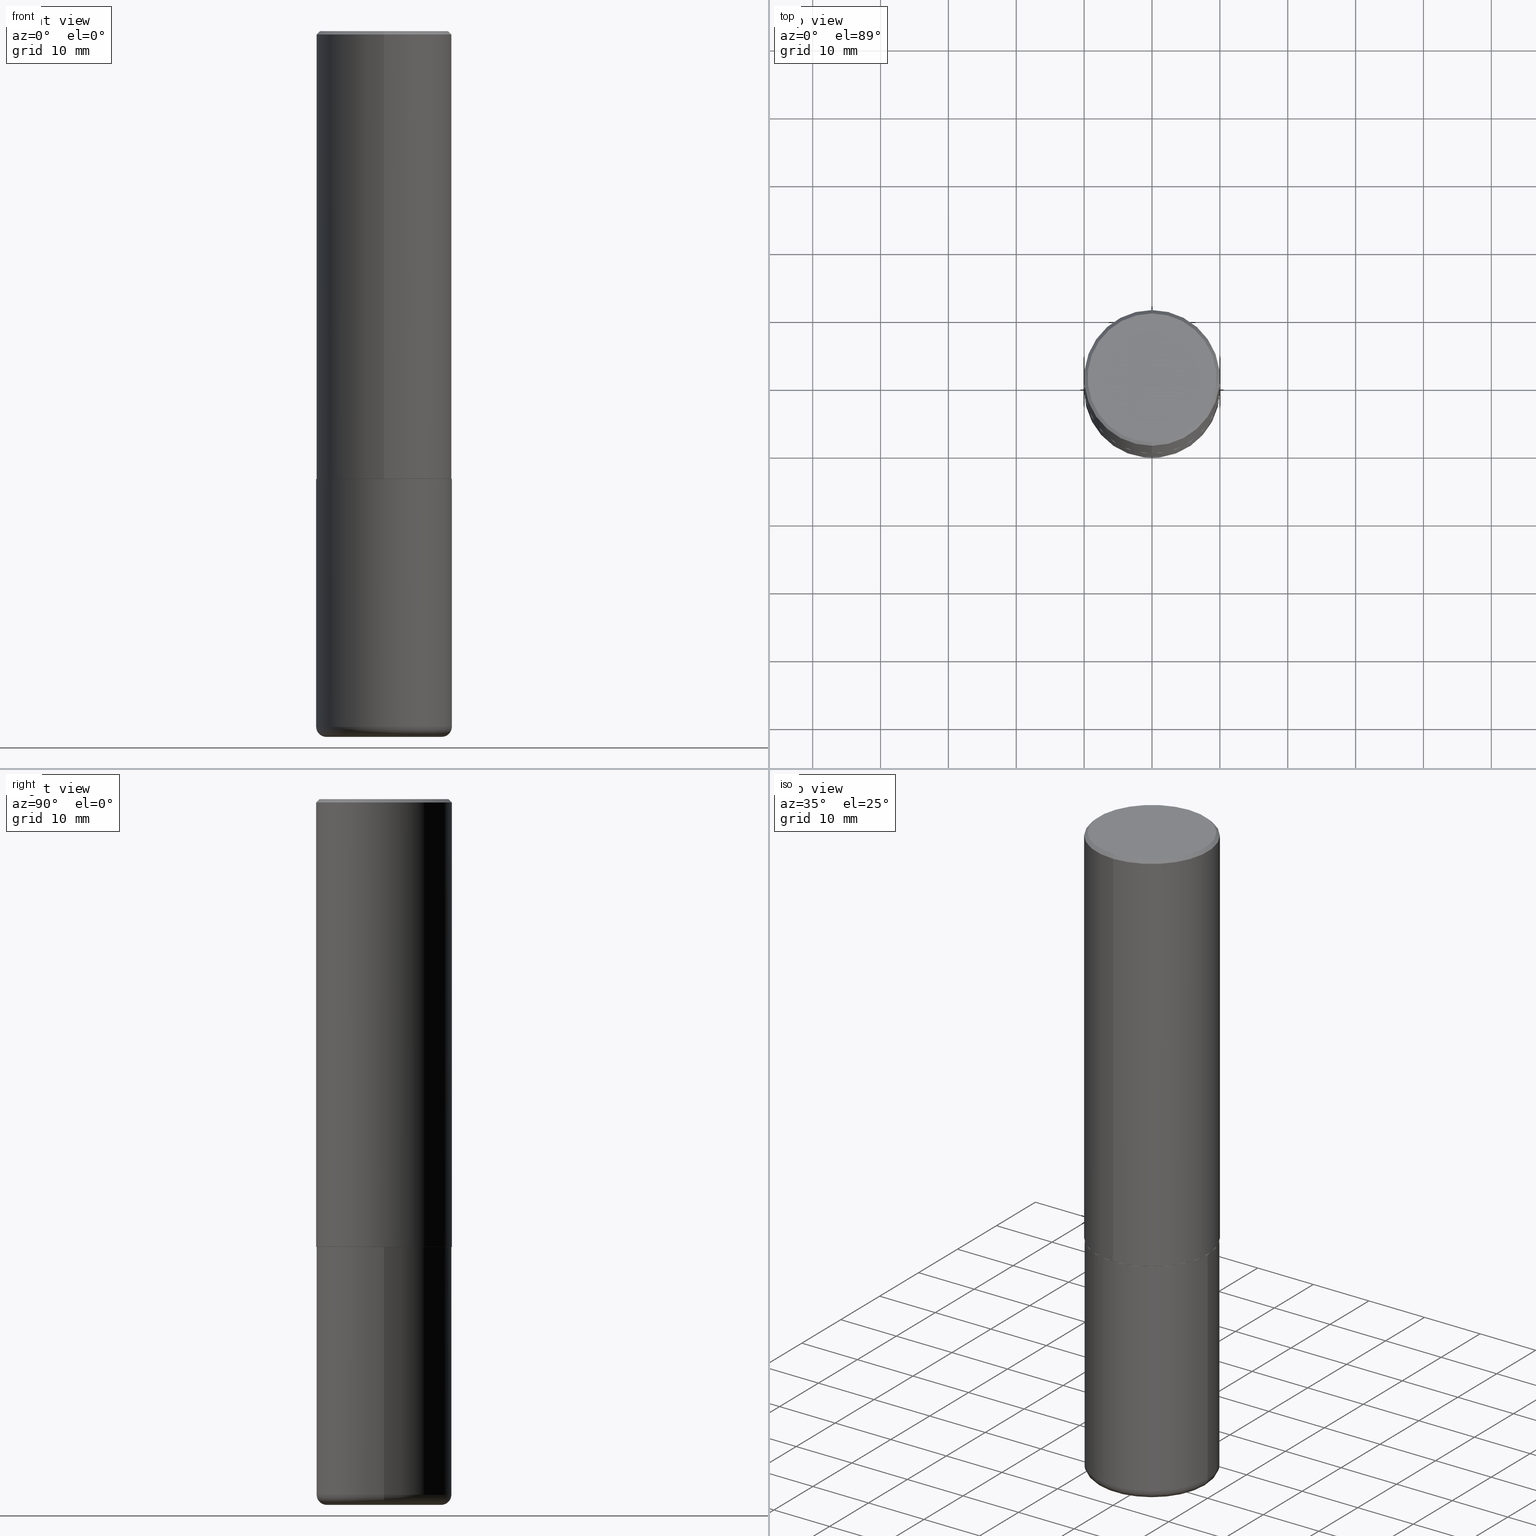
[diagram: canonical four-view strip — front | top / right | iso, engineering-drawing reading convention]
A machine part, canonical four-view strip (front | top / right | iso — engineering-drawing reading convention). The complete STEP part file that produces these views, byte-faithful:
ISO-10303-21;
HEADER;
FILE_DESCRIPTION (( 'STEP AP203' ),
    '1' );
FILE_NAME ('46903.STEP',
    '2024-03-05T07:08:31',
    ( '' ),
    ( '' ),
    'SwSTEP 2.0',
    'SolidWorks 2023',
    '' );
FILE_SCHEMA (( 'CONFIG_CONTROL_DESIGN' ));
ENDSEC;

DATA;
#1 = CIRCLE ( 'NONE', #373, 0.3937000000000002720 ) ;
#2 = DIRECTION ( 'NONE',  ( -2.446544762670070831E-29, 3.489940507917079412E-15, 1.000000000000000000 ) ) ;
#3 = ADVANCED_FACE ( 'NONE', ( #52 ), #273, .F. ) ;
#4 = DIRECTION ( 'NONE',  ( -2.445468806185136597E-29, 3.491481338843145583E-15, 1.000000000000000000 ) ) ;
#5 = DIRECTION ( 'NONE',  ( 1.000000000000000000, -6.982962677686269077E-15, 4.883557194083114022E-29 ) ) ;
#6 = CARTESIAN_POINT ( 'NONE',  ( 6.354306145991459756E-29, -9.072265110850031044E-15, -2.598400000000000265 ) ) ;
#7 = VECTOR ( 'NONE', #21, 39.37007874015748143 ) ;
#8 = ORIENTED_EDGE ( 'NONE', *, *, #269, .F. ) ;
#9 =( LENGTH_UNIT ( ) NAMED_UNIT ( * ) SI_UNIT ( $, .METRE. ) );
#10 = ADVANCED_FACE ( 'NONE', ( #147 ), #22, .T. ) ;
#11 = EDGE_LOOP ( 'NONE', ( #410, #297, #181, #395 ) ) ;
#12 = VERTEX_POINT ( 'NONE', #82 ) ;
#13 = PERSON_AND_ORGANIZATION ( #26, #135 ) ;
#14 = ORIENTED_EDGE ( 'NONE', *, *, #154, .T. ) ;
#15 = DIRECTION ( 'NONE',  ( -2.446544762670070831E-29, 3.489940507917079412E-15, 1.000000000000000000 ) ) ;
#16 = UNCERTAINTY_MEASURE_WITH_UNIT (LENGTH_MEASURE( 1.000000000000000082E-05 ), #113, 'distance_accuracy_value', 'NONE');
#17 = VERTEX_POINT ( 'NONE', #170 ) ;
#18 = DIRECTION ( 'NONE',  ( -6.982962677686265133E-15, -1.000000000000000000, 3.489940507917079412E-15 ) ) ;
#19 = CARTESIAN_POINT ( 'NONE',  ( 6.354306145991459756E-29, -9.072265110850031044E-15, -2.598400000000000265 ) ) ;
#20 = EDGE_CURVE ( 'NONE', #44, #146, #211, .T. ) ;
#21 = DIRECTION ( 'NONE',  ( -4.851104656540950864E-15, -0.7071067811865481278, -0.7071067811865469066 ) ) ;
#22 = TOROIDAL_SURFACE ( 'NONE', #30, 0.3346000000000000085, 0.05909999999999995812 ) ;
#23 = LOCAL_TIME ( 2, 8, 31.00000000000000000, #361 ) ;
#24 = DIRECTION ( 'NONE',  ( -2.446544762670070831E-29, 3.489940507917079412E-15, 1.000000000000000000 ) ) ;
#25 = DATE_AND_TIME ( #88, #37 ) ;
#26 = PERSON ( 'UNSPECIFIED', 'UNSPECIFIED', 'UNSPECIFIED', ('UNSPECIFIED'), ('UNSPECIFIED'), ('UNSPECIFIED') ) ;
#27 = DIRECTION ( 'NONE',  ( 5.024295867789263036E-15, 0.7071067811867189912, 0.7071067811863760433 ) ) ;
#28 = ORIENTED_EDGE ( 'NONE', *, *, #310, .F. ) ;
#29 = ADVANCED_FACE ( 'NONE', ( #246 ), #300, .T. ) ;
#30 = AXIS2_PLACEMENT_3D ( 'NONE', #271, #214, #339 ) ;
#31 = CARTESIAN_POINT ( 'NONE',  ( -2.742209443527332910E-15, -0.3927000000000090973, -2.598399999999998489 ) ) ;
#32 = CARTESIAN_POINT ( 'NONE',  ( 9.868444820479501934E-29, -1.408952379476762952E-14, -4.035400000000000098 ) ) ;
#33 = DIRECTION ( 'NONE',  ( -6.982962677686265133E-15, -1.000000000000000000, 4.173946514383900962E-15 ) ) ;
#34 = EDGE_CURVE ( 'NONE', #17, #12, #266, .T. ) ;
#35 = AXIS2_PLACEMENT_3D ( 'NONE', #265, #91, #68 ) ;
#36 = DIRECTION ( 'NONE',  ( -2.446544762670070831E-29, 3.489940507917079412E-15, 1.000000000000000000 ) ) ;
#37 = LOCAL_TIME ( 2, 8, 31.00000000000000000, #64 ) ;
#38 = DIRECTION ( 'NONE',  ( 1.000000000000000000, -6.982962677686267499E-15, 0.000000000000000000 ) ) ;
#39 = VERTEX_POINT ( 'NONE', #307 ) ;
#40 = LINE ( 'NONE', #166, #293 ) ;
#41 = ORIENTED_EDGE ( 'NONE', *, *, #333, .F. ) ;
#42 = APPROVAL_STATUS ( 'not_yet_approved' ) ;
#43 = TOROIDAL_SURFACE ( 'NONE', #366, 0.3346000000000000085, 0.05909999999999995812 ) ;
#44 = VERTEX_POINT ( 'NONE', #115 ) ;
#45 = ORIENTED_EDGE ( 'NONE', *, *, #347, .T. ) ;
#46 = APPLICATION_PROTOCOL_DEFINITION ( 'international standard', 'config_control_design', 1994, #321 ) ;
#47 = EDGE_LOOP ( 'NONE', ( #280, #240 ) ) ;
#48 = ORIENTED_EDGE ( 'NONE', *, *, #148, .T. ) ;
#49 = CARTESIAN_POINT ( 'NONE',  ( 2.797406750687514786E-15, 0.3937000000000001054, -1.373989577966954523E-15 ) ) ;
#50 = CARTESIAN_POINT ( 'NONE',  ( -0.3346000000000000085, -1.171204780091433423E-14, -4.035400000000000098 ) ) ;
#51 = CARTESIAN_POINT ( 'NONE',  ( 0.000000000000000000, 0.000000000000000000, 0.000000000000000000 ) ) ;
#52 = FACE_OUTER_BOUND ( 'NONE', #47, .T. ) ;
#53 = AXIS2_PLACEMENT_3D ( 'NONE', #320, #2, #126 ) ;
#54 = DATE_AND_TIME ( #277, #192 ) ;
#55 = DIRECTION ( 'NONE',  ( 4.937700262164533843E-15, 0.7071067811865431318, -0.7071067811865516806 ) ) ;
#56 = DIRECTION ( 'NONE',  ( -6.982962677686265922E-15, -1.000000000000000000, 3.491137977679280212E-15 ) ) ;
#57 = DESIGN_CONTEXT ( 'detailed design', #321, 'design' ) ;
#58 = PLANE ( 'NONE',  #288 ) ;
#59 = AXIS2_PLACEMENT_3D ( 'NONE', #283, #153, #252 ) ;
#60 = DATE_TIME_ROLE ( 'classification_date' ) ;
#61 = DIRECTION ( 'NONE',  ( -2.446544762670070831E-29, 3.489940507917079412E-15, 1.000000000000000000 ) ) ;
#62 = APPROVAL_DATE_TIME ( #287, #69 ) ;
#63 = EDGE_CURVE ( 'NONE', #146, #39, #168, .T. ) ;
#64 = COORDINATED_UNIVERSAL_TIME_OFFSET ( 5, 0, .BEHIND. ) ;
#65 = CARTESIAN_POINT ( 'NONE',  ( 2.790301323329976493E-15, 0.3926999999999909452, -2.598400000000002041 ) ) ;
#66 = AXIS2_PLACEMENT_3D ( 'NONE', #19, #405, #83 ) ;
#67 = CIRCLE ( 'NONE', #118, 0.3926999999999999935 ) ;
#68 = DIRECTION ( 'NONE',  ( -6.982962677686265133E-15, -1.000000000000000000, 3.489940507917079412E-15 ) ) ;
#69 = APPROVAL ( #377, 'UNSPECIFIED' ) ;
#70 = CARTESIAN_POINT ( 'NONE',  ( 6.357101911321911944E-29, -9.068261415771741933E-15, -2.598400000000000265 ) ) ;
#71 = DIRECTION ( 'NONE',  ( -4.937700262165728178E-15, -0.7071067811867141062, 0.7071067811863809283 ) ) ;
#72 = CONICAL_SURFACE ( 'NONE', #122, 0.3926999999999999935, 0.7853981633976873100 ) ;
#73 = DIRECTION ( 'NONE',  ( -2.445468806185136597E-29, 3.491481338843145583E-15, 1.000000000000000000 ) ) ;
#74 = ORIENTED_EDGE ( 'NONE', *, *, #256, .T. ) ;
#75 = DIRECTION ( 'NONE',  ( 6.982962677686265922E-15, 1.000000000000000000, -3.489940507917079412E-15 ) ) ;
#76 = ORIENTED_EDGE ( 'NONE', *, *, #347, .F. ) ;
#77 = APPROVAL ( #42, 'UNSPECIFIED' ) ;
#78 = FACE_OUTER_BOUND ( 'NONE', #254, .T. ) ;
#79 = AXIS2_PLACEMENT_3D ( 'NONE', #85, #257, #56 ) ;
#80 = VERTEX_POINT ( 'NONE', #188 ) ;
#81 = ADVANCED_FACE ( 'NONE', ( #125 ), #175, .T. ) ;
#82 = CARTESIAN_POINT ( 'NONE',  ( -0.3936999999999999389, -1.129211704408011394E-14, -4.035400000000000098 ) ) ;
#83 = DIRECTION ( 'NONE',  ( -1.000000000000000000, 6.982962677686265922E-15, -4.876176775795935793E-29 ) ) ;
#84 = APPLICATION_PROTOCOL_DEFINITION ( 'international standard', 'config_control_design', 1994, #363 ) ;
#85 = CARTESIAN_POINT ( 'NONE',  ( 4.893089525340162610E-31, -6.979881015834188652E-17, -0.02000000000000008715 ) ) ;
#86 = AXIS2_PLACEMENT_3D ( 'NONE', #356, #129, #325 ) ;
#87 = CARTESIAN_POINT ( 'NONE',  ( 0.3937000000000000499, -2.749192406205083217E-15, 1.919750796630860172E-29 ) ) ;
#88 = CALENDAR_DATE ( 2024, 5, 3 ) ;
#89 = ADVANCED_FACE ( 'NONE', ( #226 ), #58, .F. ) ;
#90 = CARTESIAN_POINT ( 'NONE',  ( 0.000000000000000000, 0.000000000000000000, 0.000000000000000000 ) ) ;
#91 = DIRECTION ( 'NONE',  ( -2.446544762670070831E-29, 3.489940507917079412E-15, 1.000000000000000000 ) ) ;
#92 = EDGE_CURVE ( 'NONE', #80, #365, #155, .T. ) ;
#93 = AXIS2_PLACEMENT_3D ( 'NONE', #201, #295, #233 ) ;
#94 = DIRECTION ( 'NONE',  ( 1.000000000000000000, -6.982962677686267499E-15, 0.000000000000000000 ) ) ;
#95 = CARTESIAN_POINT ( 'NONE',  ( 9.868444820479501934E-29, -1.408952379476762952E-14, -4.035400000000000098 ) ) ;
#96 = CYLINDRICAL_SURFACE ( 'NONE', #35, 0.3937000000000001054 ) ;
#97 = ORIENTED_EDGE ( 'NONE', *, *, #34, .T. ) ;
#98 = MANIFOLD_SOLID_BREP ( 'Body-Move/Copy2[2]', #248 ) ;
#99 = AXIS2_PLACEMENT_3D ( 'NONE', #327, #355, #262 ) ;
#100 = FACE_OUTER_BOUND ( 'NONE', #408, .T. ) ;
#101 = EDGE_CURVE ( 'NONE', #302, #39, #221, .T. ) ;
#102 = VERTEX_POINT ( 'NONE', #31 ) ;
#103 = FACE_OUTER_BOUND ( 'NONE', #264, .T. ) ;
#104 = ORIENTED_EDGE ( 'NONE', *, *, #315, .T. ) ;
#105 = MECHANICAL_CONTEXT ( 'NONE', #363, 'mechanical' ) ;
#106 = ORIENTED_EDGE ( 'NONE', *, *, #353, .F. ) ;
#107 = MANIFOLD_SOLID_BREP ( 'Body-Move/Copy2[1]', #133 ) ;
#108 = ORIENTED_EDGE ( 'NONE', *, *, #315, .F. ) ;
#109 = DIRECTION ( 'NONE',  ( -2.446544762670070831E-29, 3.489940507917079412E-15, 1.000000000000000000 ) ) ;
#110 = AXIS2_PLACEMENT_3D ( 'NONE', #6, #132, #38 ) ;
#111 = ORIENTED_EDGE ( 'NONE', *, *, #101, .F. ) ;
#112 =( GEOMETRIC_REPRESENTATION_CONTEXT ( 3 ) GLOBAL_UNCERTAINTY_ASSIGNED_CONTEXT ( ( #16 ) ) GLOBAL_UNIT_ASSIGNED_CONTEXT ( ( #113, #245, #242 ) ) REPRESENTATION_CONTEXT ( 'NONE', 'WORKASPACE' ) );
#113 =( CONVERSION_BASED_UNIT ( 'INCH', #279 ) LENGTH_UNIT ( ) NAMED_UNIT ( #189 ) );
#114 = VERTEX_POINT ( 'NONE', #384 ) ;
#115 = CARTESIAN_POINT ( 'NONE',  ( 2.679362779428219524E-15, 0.3736999999999999211, -1.227933351503875560E-15 ) ) ;
#116 = PERSON_AND_ORGANIZATION ( #26, #135 ) ;
#117 = CARTESIAN_POINT ( 'NONE',  ( 2.749192406205082822E-15, 0.3936999999999998834, -0.02000000000000146105 ) ) ;
#118 = AXIS2_PLACEMENT_3D ( 'NONE', #70, #165, #194 ) ;
#119 = FACE_OUTER_BOUND ( 'NONE', #173, .T. ) ;
#120 = CC_DESIGN_PERSON_AND_ORGANIZATION_ASSIGNMENT ( #344, #409, ( #253 ) ) ;
#121 = LINE ( 'NONE', #312, #7 ) ;
#122 = AXIS2_PLACEMENT_3D ( 'NONE', #364, #15, #368 ) ;
#123 = DATE_AND_TIME ( #404, #23 ) ;
#124 = CYLINDRICAL_SURFACE ( 'NONE', #324, 0.3937000000000000499 ) ;
#125 = FACE_OUTER_BOUND ( 'NONE', #11, .T. ) ;
#126 = DIRECTION ( 'NONE',  ( -6.982962677686265922E-15, -1.000000000000000000, 4.163344669033672479E-15 ) ) ;
#127 = CC_DESIGN_DATE_AND_TIME_ASSIGNMENT ( #25, #60, ( #388 ) ) ;
#128 = PLANE ( 'NONE',  #260 ) ;
#129 = DIRECTION ( 'NONE',  ( -2.446544762670070831E-29, 3.489940507917079412E-15, 1.000000000000000000 ) ) ;
#130 = EDGE_LOOP ( 'NONE', ( #399, #140, #336, #326 ) ) ;
#131 = EDGE_CURVE ( 'NONE', #39, #146, #206, .T. ) ;
#132 = DIRECTION ( 'NONE',  ( -2.445468806185136597E-29, 3.491481338843145583E-15, 1.000000000000000000 ) ) ;
#133 = CLOSED_SHELL ( 'NONE', ( #29, #179, #3, #139, #10, #169 ) ) ;
#134 = CIRCLE ( 'NONE', #99, 0.05909999999999992343 ) ;
#135 = ORGANIZATION ( 'UNSPECIFIED', 'UNSPECIFIED', '' ) ;
#136 = DIRECTION ( 'NONE',  ( -2.445468806185136597E-29, 3.491481338843145583E-15, 1.000000000000000000 ) ) ;
#137 = EDGE_LOOP ( 'NONE', ( #369, #97, #28, #309 ) ) ;
#138 = ORIENTED_EDGE ( 'NONE', *, *, #34, .F. ) ;
#139 = ADVANCED_FACE ( 'NONE', ( #156 ), #124, .T. ) ;
#140 = ORIENTED_EDGE ( 'NONE', *, *, #286, .T. ) ;
#141 = EDGE_LOOP ( 'NONE', ( #45, #401, #360, #203 ) ) ;
#142 = ORIENTED_EDGE ( 'NONE', *, *, #101, .T. ) ;
#143 = COORDINATED_UNIVERSAL_TIME_OFFSET ( 5, 0, .BEHIND. ) ;
#144 = CIRCLE ( 'NONE', #86, 0.3736999999999999211 ) ;
#145 = CARTESIAN_POINT ( 'NONE',  ( 0.000000000000000000, 0.000000000000000000, 0.000000000000000000 ) ) ;
#146 = VERTEX_POINT ( 'NONE', #313 ) ;
#147 = FACE_OUTER_BOUND ( 'NONE', #392, .T. ) ;
#148 = EDGE_CURVE ( 'NONE', #212, #178, #258, .T. ) ;
#149 = ORIENTED_EDGE ( 'NONE', *, *, #63, .T. ) ;
#150 = PLANE ( 'NONE',  #59 ) ;
#151 = AXIS2_PLACEMENT_3D ( 'NONE', #259, #294, #230 ) ;
#152 = SHAPE_DEFINITION_REPRESENTATION ( #397, #402 ) ;
#153 = DIRECTION ( 'NONE',  ( 2.438088387897960049E-29, -3.491481338843145188E-15, -1.000000000000000000 ) ) ;
#154 = EDGE_CURVE ( 'NONE', #365, #302, #1, .T. ) ;
#155 = LINE ( 'NONE', #65, #249 ) ;
#156 = FACE_OUTER_BOUND ( 'NONE', #204, .T. ) ;
#157 = AXIS2_PLACEMENT_3D ( 'NONE', #187, #159, #184 ) ;
#158 = APPROVAL_PERSON_ORGANIZATION ( #116, #69, #190 ) ;
#159 = DIRECTION ( 'NONE',  ( -2.446544762670070831E-29, 3.489940507917079412E-15, 1.000000000000000000 ) ) ;
#160 = DIRECTION ( 'NONE',  ( -2.445468806185136597E-29, 3.491481338843145583E-15, 1.000000000000000000 ) ) ;
#161 = CARTESIAN_POINT ( 'NONE',  ( 6.357101911321911944E-29, -9.068261415771741933E-15, -2.598400000000000265 ) ) ;
#162 = CIRCLE ( 'NONE', #318, 0.3926999999999999935 ) ;
#163 = CARTESIAN_POINT ( 'NONE',  ( -2.749192406205021291E-15, -0.3937000000000093758, -2.597399999999999043 ) ) ;
#164 = EDGE_CURVE ( 'NONE', #328, #39, #121, .T. ) ;
#165 = DIRECTION ( 'NONE',  ( -2.446544762670070831E-29, 3.489940507917079412E-15, 1.000000000000000000 ) ) ;
#166 = CARTESIAN_POINT ( 'NONE',  ( -0.3937000000000000499, 2.797406750687514786E-15, -1.936584745033356735E-29 ) ) ;
#167 = ORIENTED_EDGE ( 'NONE', *, *, #310, .T. ) ;
#168 = CIRCLE ( 'NONE', #79, 0.3936999999999999389 ) ;
#169 = ADVANCED_FACE ( 'NONE', ( #119 ), #150, .T. ) ;
#170 = CARTESIAN_POINT ( 'NONE',  ( -0.3346000000000000085, -1.160525569606004165E-14, -4.094500000000000028 ) ) ;
#171 = ORIENTED_EDGE ( 'NONE', *, *, #148, .F. ) ;
#172 = ORIENTED_EDGE ( 'NONE', *, *, #238, .F. ) ;
#173 = EDGE_LOOP ( 'NONE', ( #172, #108 ) ) ;
#174 = ORIENTED_EDGE ( 'NONE', *, *, #183, .F. ) ;
#175 = CONICAL_SURFACE ( 'NONE', #411, 0.3936999999999999389, 0.7853981633974457255 ) ;
#176 = APPROVAL_ROLE ( '' ) ;
#177 = AXIS2_PLACEMENT_3D ( 'NONE', #145, #281, #338 ) ;
#178 = VERTEX_POINT ( 'NONE', #382 ) ;
#179 = ADVANCED_FACE ( 'NONE', ( #285 ), #43, .T. ) ;
#180 = CARTESIAN_POINT ( 'NONE',  ( 4.893089525340162610E-31, -6.979881015834188652E-17, -0.02000000000000008715 ) ) ;
#181 = ORIENTED_EDGE ( 'NONE', *, *, #131, .T. ) ;
#182 = CARTESIAN_POINT ( 'NONE',  ( 4.893089525340162610E-31, -6.979881015834188652E-17, -0.02000000000000008715 ) ) ;
#183 = EDGE_CURVE ( 'NONE', #44, #328, #413, .T. ) ;
#184 = DIRECTION ( 'NONE',  ( -6.982962677686265922E-15, -1.000000000000000000, 3.491137977679280212E-15 ) ) ;
#185 = CIRCLE ( 'NONE', #93, 0.3346000000000000085 ) ;
#186 = PERSON_AND_ORGANIZATION_ROLE ( 'design_supplier' ) ;
#187 = CARTESIAN_POINT ( 'NONE',  ( 4.893089525340162610E-31, -6.979881015834188652E-17, -0.02000000000000008715 ) ) ;
#188 = CARTESIAN_POINT ( 'NONE',  ( 2.793854037008778575E-15, 0.3926999999999909452, -2.598400000000002041 ) ) ;
#189 = DIMENSIONAL_EXPONENTS ( 1.000000000000000000, 0.000000000000000000, 0.000000000000000000, 0.000000000000000000, 0.000000000000000000, 0.000000000000000000, 0.000000000000000000 ) ;
#190 = APPROVAL_ROLE ( '' ) ;
#191 = AXIS2_PLACEMENT_3D ( 'NONE', #199, #160, #354 ) ;
#192 = LOCAL_TIME ( 2, 8, 31.00000000000000000, #143 ) ;
#193 = DIRECTION ( 'NONE',  ( -2.446544762670070831E-29, 3.489940507917079412E-15, 1.000000000000000000 ) ) ;
#194 = DIRECTION ( 'NONE',  ( -6.982962677686265133E-15, -1.000000000000000000, 4.173946514383900962E-15 ) ) ;
#195 = CARTESIAN_POINT ( 'NONE',  ( 6.357101911321911944E-29, -9.068261415771741933E-15, -2.598400000000000265 ) ) ;
#196 = CC_DESIGN_DATE_AND_TIME_ASSIGNMENT ( #54, #237, ( #205 ) ) ;
#197 = CIRCLE ( 'NONE', #151, 0.3937000000000000499 ) ;
#198 = AXIS2_PLACEMENT_3D ( 'NONE', #210, #329, #18 ) ;
#199 = CARTESIAN_POINT ( 'NONE',  ( 1.001297202692504215E-28, -1.429587034189326149E-14, -4.094500000000000028 ) ) ;
#200 = EDGE_LOOP ( 'NONE', ( #167, #208, #106, #171 ) ) ;
#201 = CARTESIAN_POINT ( 'NONE',  ( 1.001297202692504215E-28, -1.429587034189326149E-14, -4.094500000000000028 ) ) ;
#202 = CYLINDRICAL_SURFACE ( 'NONE', #198, 0.3937000000000001054 ) ;
#203 = ORIENTED_EDGE ( 'NONE', *, *, #284, .F. ) ;
#204 = EDGE_LOOP ( 'NONE', ( #316, #342, #48, #8 ) ) ;
#205 = PRODUCT_DEFINITION ( 'UNKNOWN', '', #253, #57 ) ;
#206 = CIRCLE ( 'NONE', #157, 0.3936999999999999389 ) ;
#207 = APPROVAL_STATUS ( 'not_yet_approved' ) ;
#208 = ORIENTED_EDGE ( 'NONE', *, *, #261, .T. ) ;
#209 = ORIENTED_EDGE ( 'NONE', *, *, #183, .T. ) ;
#210 = CARTESIAN_POINT ( 'NONE',  ( 0.000000000000000000, 0.000000000000000000, 0.000000000000000000 ) ) ;
#211 = LINE ( 'NONE', #117, #241 ) ;
#212 = VERTEX_POINT ( 'NONE', #359 ) ;
#213 = COORDINATED_UNIVERSAL_TIME_OFFSET ( 5, 0, .BEHIND. ) ;
#214 = DIRECTION ( 'NONE',  ( -2.445468806185136597E-29, 3.491481338843145583E-15, 1.000000000000000000 ) ) ;
#215 = ADVANCED_FACE ( 'NONE', ( #387 ), #394, .T. ) ;
#216 = CIRCLE ( 'NONE', #53, 0.3937000000000002720 ) ;
#217 = APPROVAL_ROLE ( '' ) ;
#218 = ORIENTED_EDGE ( 'NONE', *, *, #164, .F. ) ;
#219 = DIRECTION ( 'NONE',  ( -2.445468806185136877E-29, 3.491481338843145188E-15, 1.000000000000000000 ) ) ;
#220 = ADVANCED_FACE ( 'NONE', ( #100 ), #128, .F. ) ;
#221 = LINE ( 'NONE', #251, #229 ) ;
#222 = VECTOR ( 'NONE', #109, 39.37007874015748143 ) ;
#223 = AXIS2_PLACEMENT_3D ( 'NONE', #51, #407, #308 ) ;
#224 = CALENDAR_DATE ( 2024, 5, 3 ) ;
#225 = VERTEX_POINT ( 'NONE', #232 ) ;
#226 = FACE_OUTER_BOUND ( 'NONE', #335, .T. ) ;
#227 = CC_DESIGN_PERSON_AND_ORGANIZATION_ASSIGNMENT ( #341, #334, ( #205 ) ) ;
#228 = CARTESIAN_POINT ( 'NONE',  ( -1.865671824751044752E-45, 2.661338461909964550E-31, 7.625741630473653378E-17 ) ) ;
#229 = VECTOR ( 'NONE', #319, 39.37007874015748143 ) ;
#230 = DIRECTION ( 'NONE',  ( 1.000000000000000000, -6.982962677686267499E-15, 0.000000000000000000 ) ) ;
#231 = APPROVAL ( #207, 'UNSPECIFIED' ) ;
#232 = CARTESIAN_POINT ( 'NONE',  ( 0.3346000000000000085, -1.663236965384708707E-14, -4.094500000000000028 ) ) ;
#233 = DIRECTION ( 'NONE',  ( 1.000000000000000000, -6.982962677686269866E-15, 0.000000000000000000 ) ) ;
#234 = LOCAL_TIME ( 2, 8, 31.00000000000000000, #379 ) ;
#235 = APPROVAL_PERSON_ORGANIZATION ( #301, #77, #176 ) ;
#236 = CARTESIAN_POINT ( 'NONE',  ( 2.609533152651356620E-15, 0.3736999999999999211, -1.266062059656243932E-15 ) ) ;
#237 = DATE_TIME_ROLE ( 'creation_date' ) ;
#238 = EDGE_CURVE ( 'NONE', #225, #17, #185, .T. ) ;
#239 = LINE ( 'NONE', #49, #222 ) ;
#240 = ORIENTED_EDGE ( 'NONE', *, *, #269, .T. ) ;
#241 = VECTOR ( 'NONE', #55, 39.37007874015748854 ) ;
#242 =( NAMED_UNIT ( * ) SI_UNIT ( $, .STERADIAN. ) SOLID_ANGLE_UNIT ( ) );
#243 = ORIENTED_EDGE ( 'NONE', *, *, #274, .T. ) ;
#244 = EDGE_CURVE ( 'NONE', #225, #212, #134, .T. ) ;
#245 =( NAMED_UNIT ( * ) PLANE_ANGLE_UNIT ( ) SI_UNIT ( $, .RADIAN. ) );
#246 = FACE_OUTER_BOUND ( 'NONE', #200, .T. ) ;
#247 = ORIENTED_EDGE ( 'NONE', *, *, #372, .T. ) ;
#248 = CLOSED_SHELL ( 'NONE', ( #215, #406, #81, #390, #362, #378, #89, #220 ) ) ;
#249 = VECTOR ( 'NONE', #27, 39.37007874015748143 ) ;
#250 = CC_DESIGN_SECURITY_CLASSIFICATION ( #388, ( #253 ) ) ;
#251 = CARTESIAN_POINT ( 'NONE',  ( -2.749192406205083217E-15, -0.3937000000000001054, 1.373989577966954523E-15 ) ) ;
#252 = DIRECTION ( 'NONE',  ( -1.000000000000000000, 6.982962677686265922E-15, -4.876176775795935793E-29 ) ) ;
#253 = PRODUCT_DEFINITION_FORMATION_WITH_SPECIFIED_SOURCE ( 'ANY', '', #374, .NOT_KNOWN. ) ;
#254 = EDGE_LOOP ( 'NONE', ( #218, #174, #376, #149 ) ) ;
#255 = PERSON_AND_ORGANIZATION ( #26, #135 ) ;
#256 = EDGE_CURVE ( 'NONE', #302, #365, #216, .T. ) ;
#257 = DIRECTION ( 'NONE',  ( -2.446544762670070831E-29, 3.489940507917079412E-15, 1.000000000000000000 ) ) ;
#258 = LINE ( 'NONE', #87, #381 ) ;
#259 = CARTESIAN_POINT ( 'NONE',  ( 9.868444820479501934E-29, -1.408952379476762952E-14, -4.035400000000000098 ) ) ;
#260 = AXIS2_PLACEMENT_3D ( 'NONE', #236, #322, #75 ) ;
#261 = EDGE_CURVE ( 'NONE', #12, #114, #40, .T. ) ;
#262 = DIRECTION ( 'NONE',  ( 1.000000000000000000, -6.982962677686271444E-15, 0.000000000000000000 ) ) ;
#263 = DIRECTION ( 'NONE',  ( 1.000000000000000000, -6.982962677686267499E-15, 0.000000000000000000 ) ) ;
#264 = EDGE_LOOP ( 'NONE', ( #74, #247, #305, #111 ) ) ;
#265 = CARTESIAN_POINT ( 'NONE',  ( 0.000000000000000000, 0.000000000000000000, 0.000000000000000000 ) ) ;
#266 = CIRCLE ( 'NONE', #357, 0.05909999999999992343 ) ;
#267 = AXIS2_PLACEMENT_3D ( 'NONE', #180, #398, #299 ) ;
#268 = DATE_AND_TIME ( #396, #414 ) ;
#269 = EDGE_CURVE ( 'NONE', #114, #178, #340, .T. ) ;
#270 = PERSON_AND_ORGANIZATION ( #26, #135 ) ;
#271 = CARTESIAN_POINT ( 'NONE',  ( 9.868444820479501934E-29, -1.408952379476762952E-14, -4.035400000000000098 ) ) ;
#272 = ORIENTED_EDGE ( 'NONE', *, *, #372, .F. ) ;
#273 = PLANE ( 'NONE',  #66 ) ;
#274 = EDGE_CURVE ( 'NONE', #328, #44, #144, .T. ) ;
#275 = CIRCLE ( 'NONE', #191, 0.3346000000000000085 ) ;
#276 = CC_DESIGN_APPROVAL ( #69, ( #388 ) ) ;
#277 = CALENDAR_DATE ( 2024, 5, 3 ) ;
#278 = DIRECTION ( 'NONE',  ( 7.105427357601001859E-15, 1.000000000000000000, -3.491481338843145583E-15 ) ) ;
#279 = LENGTH_MEASURE_WITH_UNIT ( LENGTH_MEASURE( 0.02539999999999999897 ), #9 );
#280 = ORIENTED_EDGE ( 'NONE', *, *, #353, .T. ) ;
#281 = DIRECTION ( 'NONE',  ( -2.445468806185136597E-29, 3.491481338843145583E-15, 1.000000000000000000 ) ) ;
#282 = AXIS2_PLACEMENT_3D ( 'NONE', #195, #36, #292 ) ;
#283 = CARTESIAN_POINT ( 'NONE',  ( 1.001297202692504215E-28, -1.429587034189326149E-14, -4.094500000000000028 ) ) ;
#284 = EDGE_CURVE ( 'NONE', #102, #302, #323, .T. ) ;
#285 = FACE_OUTER_BOUND ( 'NONE', #137, .T. ) ;
#286 = EDGE_CURVE ( 'NONE', #80, #102, #162, .T. ) ;
#287 = DATE_AND_TIME ( #224, #234 ) ;
#288 = AXIS2_PLACEMENT_3D ( 'NONE', #350, #61, #380 ) ;
#289 = DIRECTION ( 'NONE',  ( -2.445468806185136597E-29, 3.491481338843145583E-15, 1.000000000000000000 ) ) ;
#290 = CARTESIAN_POINT ( 'NONE',  ( -2.632373081744935132E-15, -0.3736999999999999211, 1.380448184113348850E-15 ) ) ;
#291 = PRODUCT_RELATED_PRODUCT_CATEGORY ( 'detail', '', ( #374 ) ) ;
#292 = DIRECTION ( 'NONE',  ( -6.982962677686265133E-15, -1.000000000000000000, 4.173946514383900962E-15 ) ) ;
#293 = VECTOR ( 'NONE', #296, 39.37007874015748143 ) ;
#294 = DIRECTION ( 'NONE',  ( -2.445468806185136597E-29, 3.491481338843145583E-15, 1.000000000000000000 ) ) ;
#295 = DIRECTION ( 'NONE',  ( -2.445468806185136597E-29, 3.491481338843145583E-15, 1.000000000000000000 ) ) ;
#296 = DIRECTION ( 'NONE',  ( -2.445468806185136877E-29, 3.491481338843145188E-15, 1.000000000000000000 ) ) ;
#297 = ORIENTED_EDGE ( 'NONE', *, *, #164, .T. ) ;
#298 = AXIS2_PLACEMENT_3D ( 'NONE', #228, #193, #352 ) ;
#299 = DIRECTION ( 'NONE',  ( 6.982962677686265922E-15, 1.000000000000000000, -3.491137977679280212E-15 ) ) ;
#300 = CYLINDRICAL_SURFACE ( 'NONE', #177, 0.3937000000000000499 ) ;
#301 = PERSON_AND_ORGANIZATION ( #26, #135 ) ;
#302 = VERTEX_POINT ( 'NONE', #163 ) ;
#303 = CC_DESIGN_PERSON_AND_ORGANIZATION_ASSIGNMENT ( #13, #400, ( #374 ) ) ;
#304 = FACE_OUTER_BOUND ( 'NONE', #130, .T. ) ;
#305 = ORIENTED_EDGE ( 'NONE', *, *, #131, .F. ) ;
#306 = CIRCLE ( 'NONE', #331, 0.3937000000000000499 ) ;
#307 = CARTESIAN_POINT ( 'NONE',  ( -2.700978061722650858E-15, -0.3937000000000000499, -0.01999999999999870978 ) ) ;
#308 = DIRECTION ( 'NONE',  ( 1.000000000000000000, 0.000000000000000000, 0.000000000000000000 ) ) ;
#309 = ORIENTED_EDGE ( 'NONE', *, *, #244, .F. ) ;
#310 = EDGE_CURVE ( 'NONE', #212, #12, #306, .T. ) ;
#311 = PERSON_AND_ORGANIZATION ( #26, #135 ) ;
#312 = CARTESIAN_POINT ( 'NONE',  ( -2.700978061722650858E-15, -0.3937000000000000499, -0.01999999999999870978 ) ) ;
#313 = CARTESIAN_POINT ( 'NONE',  ( 2.749192406205082822E-15, 0.3936999999999998834, -0.02000000000000146105 ) ) ;
#314 = CARTESIAN_POINT ( 'NONE',  ( 6.354655366559244331E-29, -9.064771475263826350E-15, -2.597400000000000375 ) ) ;
#315 = EDGE_CURVE ( 'NONE', #17, #225, #275, .T. ) ;
#316 = ORIENTED_EDGE ( 'NONE', *, *, #261, .F. ) ;
#317 = PERSON_AND_ORGANIZATION_ROLE ( 'classification_officer' ) ;
#318 = AXIS2_PLACEMENT_3D ( 'NONE', #161, #418, #33 ) ;
#319 = DIRECTION ( 'NONE',  ( -2.446544762670070831E-29, 3.489940507917079412E-15, 1.000000000000000000 ) ) ;
#320 = CARTESIAN_POINT ( 'NONE',  ( 6.354655366559244331E-29, -9.064771475263826350E-15, -2.597400000000000375 ) ) ;
#321 = APPLICATION_CONTEXT ( 'configuration controlled 3d designs of mechanical parts and assemblies' ) ;
#322 = DIRECTION ( 'NONE',  ( 2.446544762670070831E-29, -3.489940507917079412E-15, -1.000000000000000000 ) ) ;
#323 = LINE ( 'NONE', #389, #345 ) ;
#324 = AXIS2_PLACEMENT_3D ( 'NONE', #90, #289, #417 ) ;
#325 = DIRECTION ( 'NONE',  ( -6.982962677686265133E-15, -1.000000000000000000, 3.489940507917079017E-15 ) ) ;
#326 = ORIENTED_EDGE ( 'NONE', *, *, #154, .F. ) ;
#327 = CARTESIAN_POINT ( 'NONE',  ( 0.3346000000000000085, -1.642602310672145667E-14, -4.035400000000000098 ) ) ;
#328 = VERTEX_POINT ( 'NONE', #290 ) ;
#329 = DIRECTION ( 'NONE',  ( -2.446544762670070831E-29, 3.489940507917079412E-15, 1.000000000000000000 ) ) ;
#330 = ORIENTED_EDGE ( 'NONE', *, *, #286, .F. ) ;
#331 = AXIS2_PLACEMENT_3D ( 'NONE', #32, #136, #94 ) ;
#332 = CC_DESIGN_APPROVAL ( #231, ( #205 ) ) ;
#333 = EDGE_CURVE ( 'NONE', #12, #212, #197, .T. ) ;
#334 = PERSON_AND_ORGANIZATION_ROLE ( 'creator' ) ;
#335 = EDGE_LOOP ( 'NONE', ( #76, #330 ) ) ;
#336 = ORIENTED_EDGE ( 'NONE', *, *, #284, .T. ) ;
#337 = APPROVAL_DATE_TIME ( #268, #231 ) ;
#338 = DIRECTION ( 'NONE',  ( 1.000000000000000000, -6.982962677686265922E-15, 4.876176775795935793E-29 ) ) ;
#339 = DIRECTION ( 'NONE',  ( 1.000000000000000000, -6.982962677686269077E-15, 4.883557194083114022E-29 ) ) ;
#340 = CIRCLE ( 'NONE', #110, 0.3937000000000000499 ) ;
#341 = PERSON_AND_ORGANIZATION ( #26, #135 ) ;
#342 = ORIENTED_EDGE ( 'NONE', *, *, #333, .T. ) ;
#343 = CC_DESIGN_PERSON_AND_ORGANIZATION_ASSIGNMENT ( #311, #317, ( #388 ) ) ;
#344 = PERSON_AND_ORGANIZATION ( #26, #135 ) ;
#345 = VECTOR ( 'NONE', #71, 39.37007874015748143 ) ;
#346 = APPROVAL_PERSON_ORGANIZATION ( #270, #231, #217 ) ;
#347 = EDGE_CURVE ( 'NONE', #102, #80, #67, .T. ) ;
#348 = DIRECTION ( 'NONE',  ( 2.446544762670070831E-29, -3.489940507917079412E-15, -1.000000000000000000 ) ) ;
#349 = APPROVAL_DATE_TIME ( #123, #77 ) ;
#350 = CARTESIAN_POINT ( 'NONE',  ( 6.357101911321911944E-29, -9.068261415771741933E-15, -2.598400000000000265 ) ) ;
#351 = AXIS2_PLACEMENT_3D ( 'NONE', #385, #73, #263 ) ;
#352 = DIRECTION ( 'NONE',  ( -6.982962677686265133E-15, -1.000000000000000000, 3.489940507917079017E-15 ) ) ;
#353 = EDGE_CURVE ( 'NONE', #178, #114, #386, .T. ) ;
#354 = DIRECTION ( 'NONE',  ( 1.000000000000000000, -6.982962677686269866E-15, 0.000000000000000000 ) ) ;
#355 = DIRECTION ( 'NONE',  ( -6.982962677686266711E-15, -1.000000000000000000, 3.491481338843145583E-15 ) ) ;
#356 = CARTESIAN_POINT ( 'NONE',  ( -1.865671824751044752E-45, 2.661338461909964550E-31, 7.625741630473653378E-17 ) ) ;
#357 = AXIS2_PLACEMENT_3D ( 'NONE', #50, #278, #370 ) ;
#358 = EDGE_LOOP ( 'NONE', ( #272, #14, #142, #367 ) ) ;
#359 = CARTESIAN_POINT ( 'NONE',  ( 0.3936999999999999389, -1.683871620097271431E-14, -4.035400000000000098 ) ) ;
#360 = ORIENTED_EDGE ( 'NONE', *, *, #256, .F. ) ;
#361 = COORDINATED_UNIVERSAL_TIME_OFFSET ( 5, 0, .BEHIND. ) ;
#362 = ADVANCED_FACE ( 'NONE', ( #391 ), #96, .T. ) ;
#363 = APPLICATION_CONTEXT ( 'configuration controlled 3d designs of mechanical parts and assemblies' ) ;
#364 = CARTESIAN_POINT ( 'NONE',  ( 6.357101911321911944E-29, -9.068261415771741933E-15, -2.598400000000000265 ) ) ;
#365 = VERTEX_POINT ( 'NONE', #393 ) ;
#366 = AXIS2_PLACEMENT_3D ( 'NONE', #95, #4, #5 ) ;
#367 = ORIENTED_EDGE ( 'NONE', *, *, #63, .F. ) ;
#368 = DIRECTION ( 'NONE',  ( -6.982962677686265133E-15, -1.000000000000000000, 4.173946514383900962E-15 ) ) ;
#369 = ORIENTED_EDGE ( 'NONE', *, *, #238, .T. ) ;
#370 = DIRECTION ( 'NONE',  ( -1.000000000000000000, 7.105427357601001859E-15, 0.000000000000000000 ) ) ;
#371 = ORIENTED_EDGE ( 'NONE', *, *, #244, .T. ) ;
#372 = EDGE_CURVE ( 'NONE', #365, #146, #239, .T. ) ;
#373 = AXIS2_PLACEMENT_3D ( 'NONE', #314, #24, #412 ) ;
#374 = PRODUCT ( '46903', '46903', '', ( #105 ) ) ;
#375 = CC_DESIGN_APPROVAL ( #77, ( #253 ) ) ;
#376 = ORIENTED_EDGE ( 'NONE', *, *, #20, .T. ) ;
#377 = APPROVAL_STATUS ( 'not_yet_approved' ) ;
#378 = ADVANCED_FACE ( 'NONE', ( #304 ), #72, .T. ) ;
#379 = COORDINATED_UNIVERSAL_TIME_OFFSET ( 5, 0, .BEHIND. ) ;
#380 = DIRECTION ( 'NONE',  ( -6.982962677686265922E-15, -1.000000000000000000, 3.489940507917079412E-15 ) ) ;
#381 = VECTOR ( 'NONE', #219, 39.37007874015748143 ) ;
#382 = CARTESIAN_POINT ( 'NONE',  ( 0.3937000000000000499, -1.182145751705511584E-14, -2.598400000000000265 ) ) ;
#383 = SECURITY_CLASSIFICATION_LEVEL ( 'unclassified' ) ;
#384 = CARTESIAN_POINT ( 'NONE',  ( -0.3937000000000000499, -8.783487702121316283E-15, -2.598400000000000265 ) ) ;
#385 = CARTESIAN_POINT ( 'NONE',  ( 6.354306145991459756E-29, -9.072265110850031044E-15, -2.598400000000000265 ) ) ;
#386 = CIRCLE ( 'NONE', #351, 0.3937000000000000499 ) ;
#387 = FACE_OUTER_BOUND ( 'NONE', #141, .T. ) ;
#388 = SECURITY_CLASSIFICATION ( '', '', #383 ) ;
#389 = CARTESIAN_POINT ( 'NONE',  ( -2.742209443527332910E-15, -0.3927000000000090973, -2.598399999999998489 ) ) ;
#390 = ADVANCED_FACE ( 'NONE', ( #78 ), #403, .T. ) ;
#391 = FACE_OUTER_BOUND ( 'NONE', #358, .T. ) ;
#392 = EDGE_LOOP ( 'NONE', ( #138, #104, #371, #41 ) ) ;
#393 = CARTESIAN_POINT ( 'NONE',  ( 2.797406750687547919E-15, 0.3936999999999912792, -2.597400000000002152 ) ) ;
#394 = CONICAL_SURFACE ( 'NONE', #282, 0.3926999999999999935, 0.7853981633976873100 ) ;
#395 = ORIENTED_EDGE ( 'NONE', *, *, #20, .F. ) ;
#396 = CALENDAR_DATE ( 2024, 5, 3 ) ;
#397 = PRODUCT_DEFINITION_SHAPE ( 'NONE', 'NONE',  #205 ) ;
#398 = DIRECTION ( 'NONE',  ( 2.446544762670070831E-29, -3.489940507917079412E-15, -1.000000000000000000 ) ) ;
#399 = ORIENTED_EDGE ( 'NONE', *, *, #92, .F. ) ;
#400 = PERSON_AND_ORGANIZATION_ROLE ( 'design_owner' ) ;
#401 = ORIENTED_EDGE ( 'NONE', *, *, #92, .T. ) ;
#402 = ADVANCED_BREP_SHAPE_REPRESENTATION ( '46903', ( #107, #98, #223 ), #112 ) ;
#403 = CONICAL_SURFACE ( 'NONE', #267, 0.3936999999999999389, 0.7853981633974457255 ) ;
#404 = CALENDAR_DATE ( 2024, 5, 3 ) ;
#405 = DIRECTION ( 'NONE',  ( 2.438088387897960049E-29, -3.491481338843145188E-15, -1.000000000000000000 ) ) ;
#406 = ADVANCED_FACE ( 'NONE', ( #103 ), #202, .T. ) ;
#407 = DIRECTION ( 'NONE',  ( 0.000000000000000000, 0.000000000000000000, 1.000000000000000000 ) ) ;
#408 = EDGE_LOOP ( 'NONE', ( #209, #243 ) ) ;
#409 = PERSON_AND_ORGANIZATION_ROLE ( 'creator' ) ;
#410 = ORIENTED_EDGE ( 'NONE', *, *, #274, .F. ) ;
#411 = AXIS2_PLACEMENT_3D ( 'NONE', #182, #348, #415 ) ;
#412 = DIRECTION ( 'NONE',  ( -6.982962677686265922E-15, -1.000000000000000000, 4.163344669033672479E-15 ) ) ;
#413 = CIRCLE ( 'NONE', #298, 0.3736999999999999211 ) ;
#414 = LOCAL_TIME ( 2, 8, 31.00000000000000000, #213 ) ;
#415 = DIRECTION ( 'NONE',  ( 6.982962677686265922E-15, 1.000000000000000000, -3.491137977679280212E-15 ) ) ;
#416 = CC_DESIGN_PERSON_AND_ORGANIZATION_ASSIGNMENT ( #255, #186, ( #253 ) ) ;
#417 = DIRECTION ( 'NONE',  ( 1.000000000000000000, -6.982962677686265922E-15, 4.876176775795935793E-29 ) ) ;
#418 = DIRECTION ( 'NONE',  ( -2.446544762670070831E-29, 3.489940507917079412E-15, 1.000000000000000000 ) ) ;
ENDSEC;
END-ISO-10303-21;
